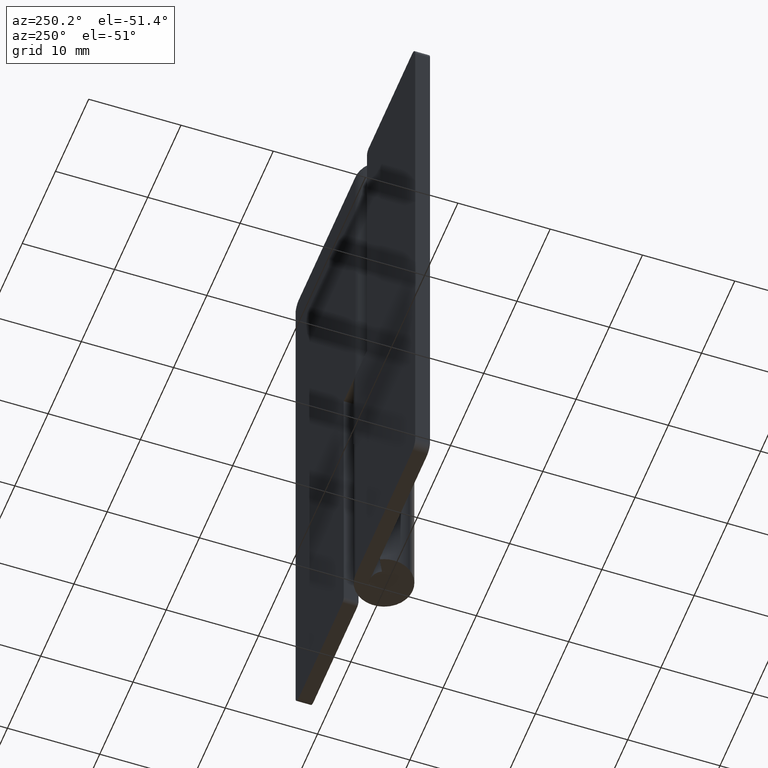
[diagram: clean part render]
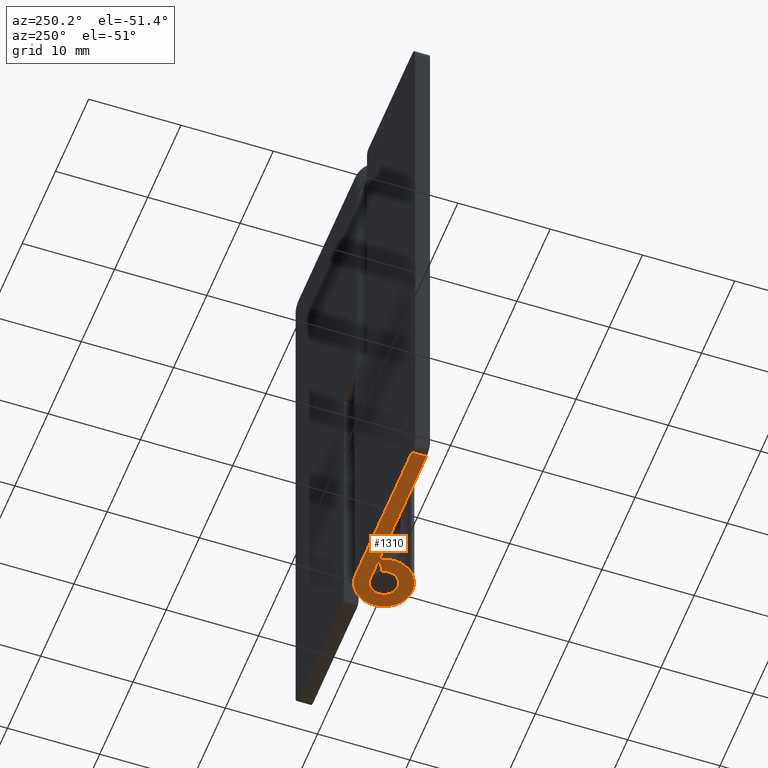
[diagram: same view with one face highlighted and labeled with its STEP entity id]
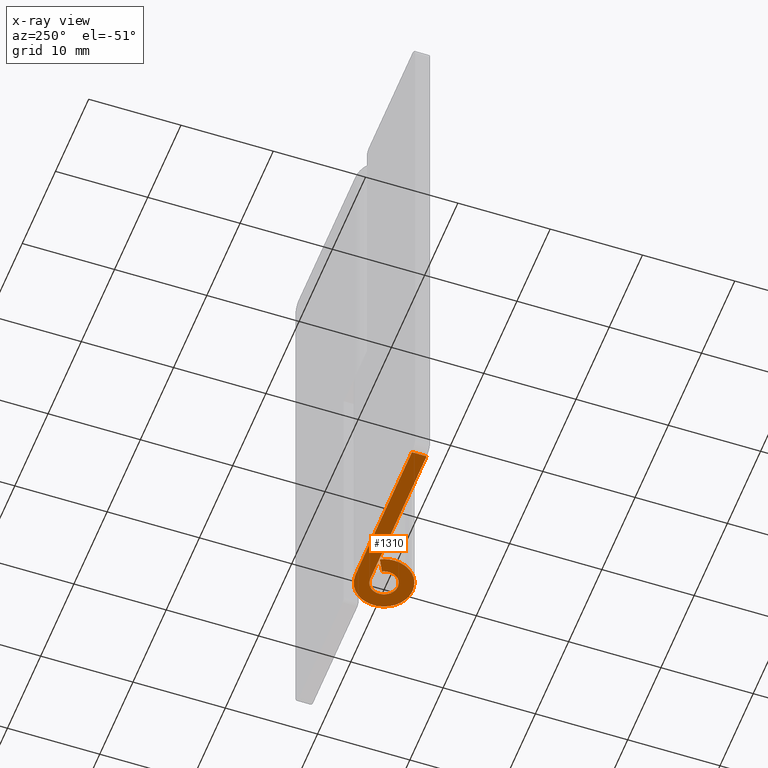
[diagram: x-ray of the same camera — body ghosted, the highlighted face saturated]
A machine part, auxiliary view. The second image highlights one B-rep face of the part: STEP entity #1310.
The next image is the same camera in x-ray: the body ghosted, the highlighted face saturated — about 0% of this face is hidden behind the body in this view.
In plain terms, the highlighted face is a freeform B-spline surface patch.
Its self-contained STEP definition (entity closure, byte-faithful):
#943=CARTESIAN_POINT('',(-17.0,1.500000000000055,0.0));
#944=VERTEX_POINT('',#943);
#965=CARTESIAN_POINT('',(-17.0,3.099998000000000,0.0));
#966=VERTEX_POINT('',#965);
#980=CARTESIAN_POINT('',(-17.0,3.099998000000000,0.0));
#981=CARTESIAN_POINT('',(-17.0,1.500000000000055,0.0));
#982=QUASI_UNIFORM_CURVE('',1,(#980,#981),.UNSPECIFIED.,.F.,.U.);
#983=EDGE_CURVE('',#966,#944,#982,.T.);
#1156=CARTESIAN_POINT('',(-1.325797621821314,0.701612903225807,0.0));
#1157=VERTEX_POINT('',#1156);
#1164=CARTESIAN_POINT('',(0.0,1.500000000000000,0.0));
#1165=VERTEX_POINT('',#1164);
#1171=CARTESIAN_POINT('',(0.0,1.500000000000000,0.0));
#1172=CARTESIAN_POINT('',(1.140047230937307,1.500000000000000,0.0));
#1173=CARTESIAN_POINT('',(1.445249296287461,0.401565027835593,0.0));
#1174=CARTESIAN_POINT('',(1.750451361637613,-0.696869944328814,0.0));
#1175=CARTESIAN_POINT('',(0.773815431857394,-1.284994037892532,0.0));
#1176=CARTESIAN_POINT('',(-0.202820497922826,-1.873118131456252,0.0));
#1177=CARTESIAN_POINT('',(-1.030933009042892,-1.089576583295442,0.0));
#1178=CARTESIAN_POINT('',(-1.859045520162959,-0.306035035134632,0.0));
#1179=CARTESIAN_POINT('',(-1.325797621821315,0.701612903225806,0.0));
#1187=(BOUNDED_CURVE()B_SPLINE_CURVE(2,(#1171,#1172,#1173,#1174,#1175,#1176,#1177,#1178,#1179),.UNSPECIFIED.,.F.,.U.)B_SPLINE_CURVE_WITH_KNOTS((3,2,2,2,3),(0.0,0.250000000000000,0.500000000000000,0.750000000000000,1.0),.UNSPECIFIED.)CURVE()GEOMETRIC_REPRESENTATION_ITEM()RATIONAL_B_SPLINE_CURVE((1.0,0.796150117301085,1.0,0.796150117301085,1.0,0.796150117301085,1.0,0.796150117301085,1.0))REPRESENTATION_ITEM(''));
#1188=EDGE_CURVE('',#1165,#1157,#1187,.T.);
#1217=CARTESIAN_POINT('',(-2.739981751764055,1.450000000000000,0.0));
#1218=VERTEX_POINT('',#1217);
#1224=CARTESIAN_POINT('',(-0.003521362805221,3.099998000000000,0.0));
#1225=VERTEX_POINT('',#1224);
#1226=CARTESIAN_POINT('',(-0.003521362805222,3.099997999999999,0.0));
#1227=CARTESIAN_POINT('',(2.353269236203463,3.102675135519133,0.0));
#1228=CARTESIAN_POINT('',(2.986140433580757,0.832445380150631,0.0));
#1229=CARTESIAN_POINT('',(3.619011630958052,-1.437784375217869,0.0));
#1230=CARTESIAN_POINT('',(1.600726611546717,-2.654745621540068,0.0));
#1231=CARTESIAN_POINT('',(-0.417558407864620,-3.871706867862271,0.0));
#1232=CARTESIAN_POINT('',(-2.129955333572982,-2.252396562993294,0.0));
#1233=CARTESIAN_POINT('',(-3.842352259281342,-0.633086258124321,0.0));
#1234=CARTESIAN_POINT('',(-2.739981751764054,1.449999999999995,0.0));
#1242=(BOUNDED_CURVE()B_SPLINE_CURVE(2,(#1226,#1227,#1228,#1229,#1230,#1231,#1232,#1233,#1234),.UNSPECIFIED.,.F.,.U.)B_SPLINE_CURVE_WITH_KNOTS((3,2,2,2,3),(0.0,0.250000000000000,0.500000000000000,0.750000000000000,1.0),.UNSPECIFIED.)CURVE()GEOMETRIC_REPRESENTATION_ITEM()RATIONAL_B_SPLINE_CURVE((1.0,0.796064190964140,1.0,0.796064190964140,1.0,0.796064190964140,1.0,0.796064190964140,1.0))REPRESENTATION_ITEM(''));
#1243=EDGE_CURVE('',#1225,#1218,#1242,.T.);
#1261=CARTESIAN_POINT('',(-1.325797621821314,0.701612903225807,0.0));
#1262=CARTESIAN_POINT('',(-2.739981751764055,1.450000000000000,0.0));
#1263=QUASI_UNIFORM_CURVE('',1,(#1261,#1262),.UNSPECIFIED.,.F.,.U.);
#1264=EDGE_CURVE('',#1157,#1218,#1263,.T.);
#1289=CARTESIAN_POINT('',(-18.003984064645280,-3.408860493758797,0.0));
#1290=CARTESIAN_POINT('',(4.103766457668462,-3.408860493758797,0.0));
#1291=CARTESIAN_POINT('',(-18.003984064645280,3.409648597008594,0.0));
#1292=CARTESIAN_POINT('',(4.103766457668462,3.409648597008594,0.0));
#1293=B_SPLINE_SURFACE_WITH_KNOTS('',1,1,((#1289,#1291),(#1290,#1292)),.UNSPECIFIED.,.F.,.F.,.U.,(2,2),(2,2),(0.0,22.107750522313740),(0.0,6.818509090767391),.UNSPECIFIED.);
#1294=CARTESIAN_POINT('',(-17.0,1.500000000000055,0.0));
#1295=CARTESIAN_POINT('',(0.0,1.500000000000000,0.0));
#1296=QUASI_UNIFORM_CURVE('',1,(#1294,#1295),.UNSPECIFIED.,.F.,.U.);
#1297=EDGE_CURVE('',#944,#1165,#1296,.T.);
#1298=ORIENTED_EDGE('',*,*,#1297,.F.);
#1299=ORIENTED_EDGE('',*,*,#983,.F.);
#1300=CARTESIAN_POINT('',(-0.003521362805221,3.099998000000000,0.0));
#1301=CARTESIAN_POINT('',(-17.0,3.099998000000000,0.0));
#1302=QUASI_UNIFORM_CURVE('',1,(#1300,#1301),.UNSPECIFIED.,.F.,.U.);
#1303=EDGE_CURVE('',#1225,#966,#1302,.T.);
#1304=ORIENTED_EDGE('',*,*,#1303,.F.);
#1305=ORIENTED_EDGE('',*,*,#1243,.T.);
#1306=ORIENTED_EDGE('',*,*,#1264,.F.);
#1307=ORIENTED_EDGE('',*,*,#1188,.F.);
#1308=EDGE_LOOP('',(#1298,#1299,#1304,#1305,#1306,#1307));
#1309=FACE_OUTER_BOUND('',#1308,.T.);
#1310=ADVANCED_FACE('',(#1309),#1293,.F.);